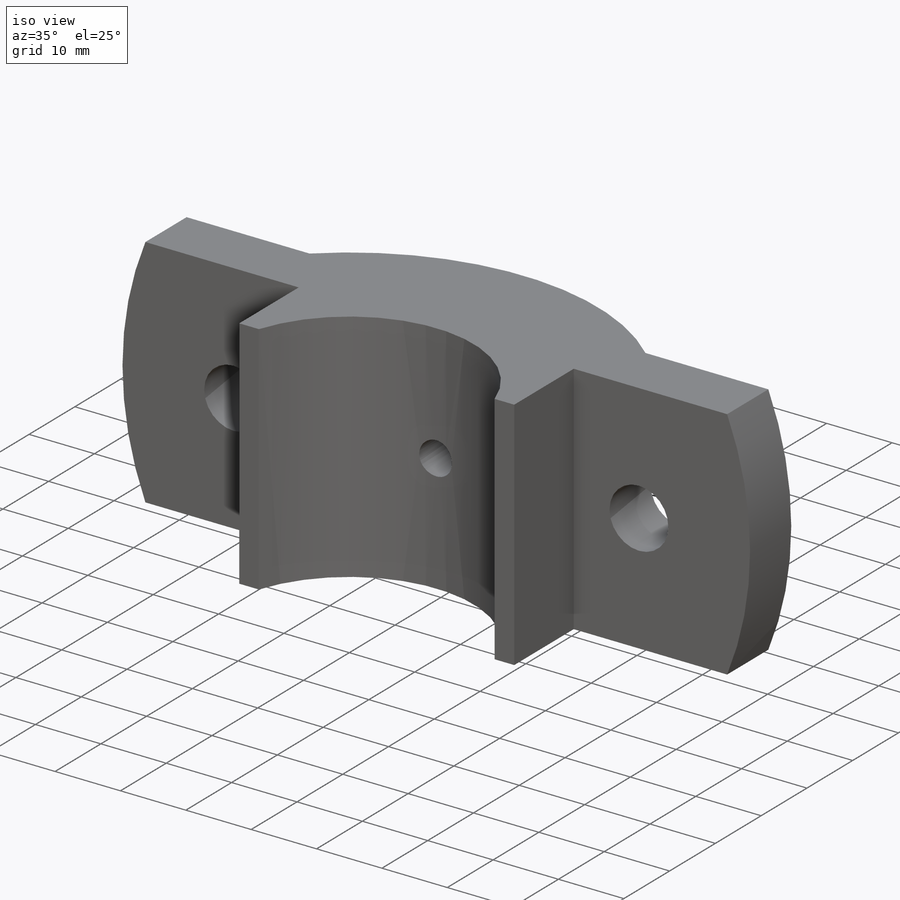
[diagram: iso view]
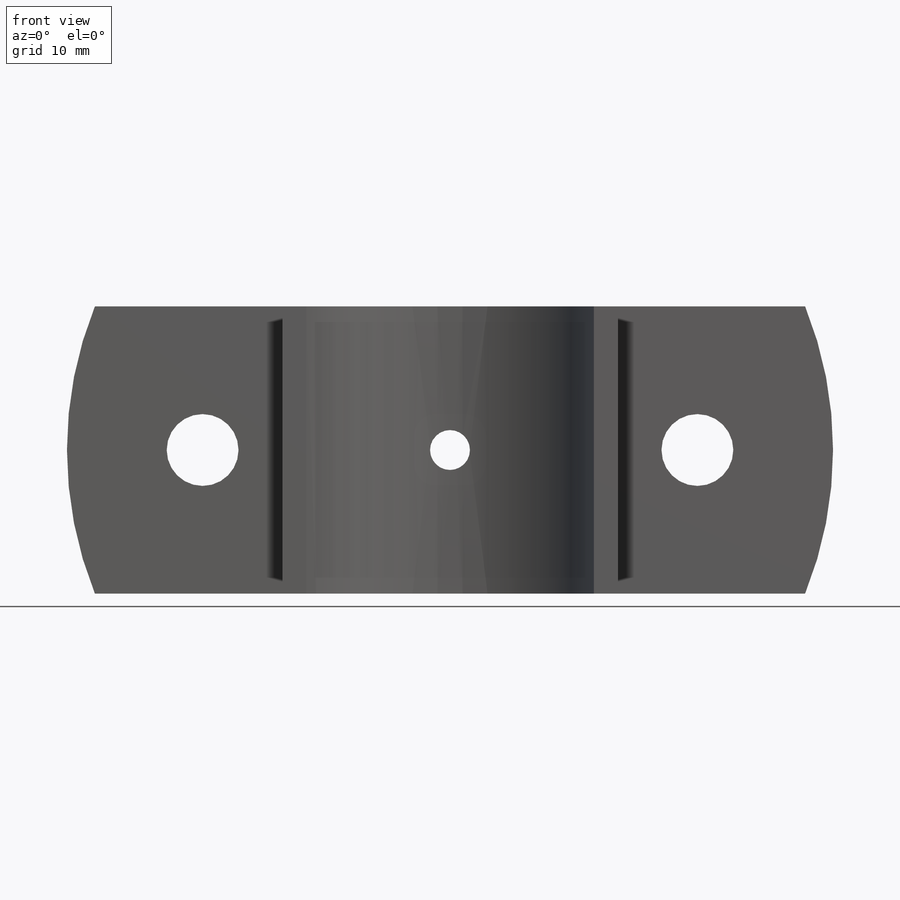
[diagram: front view]
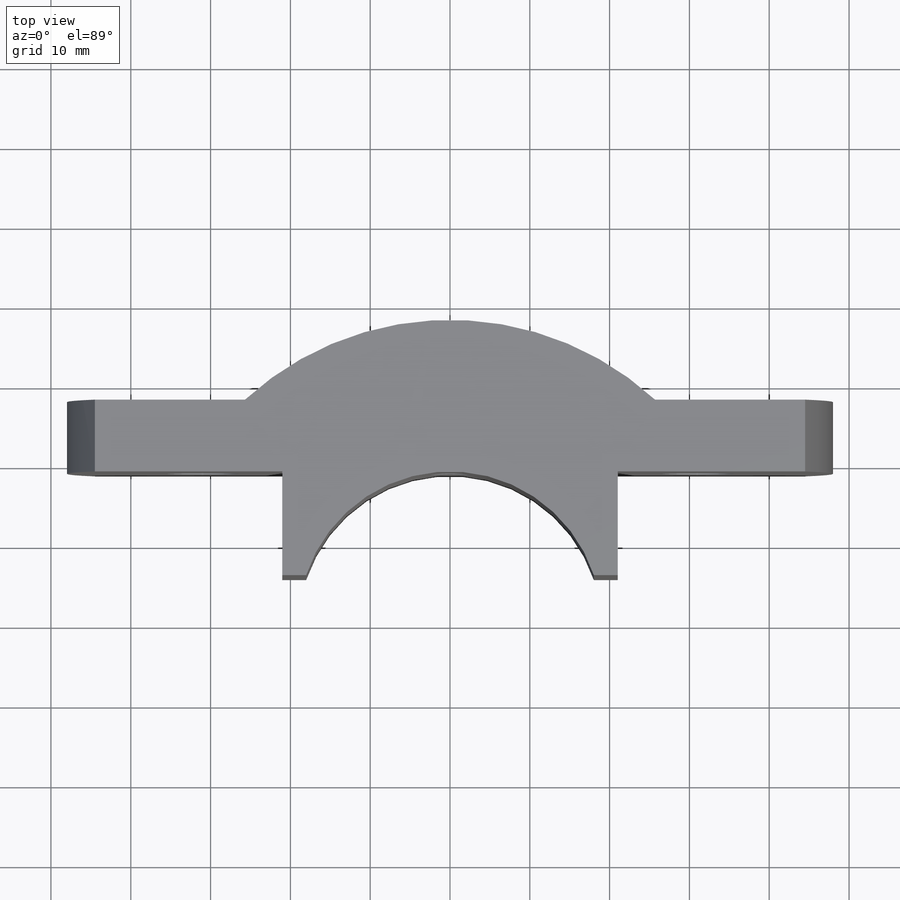
[diagram: top view]
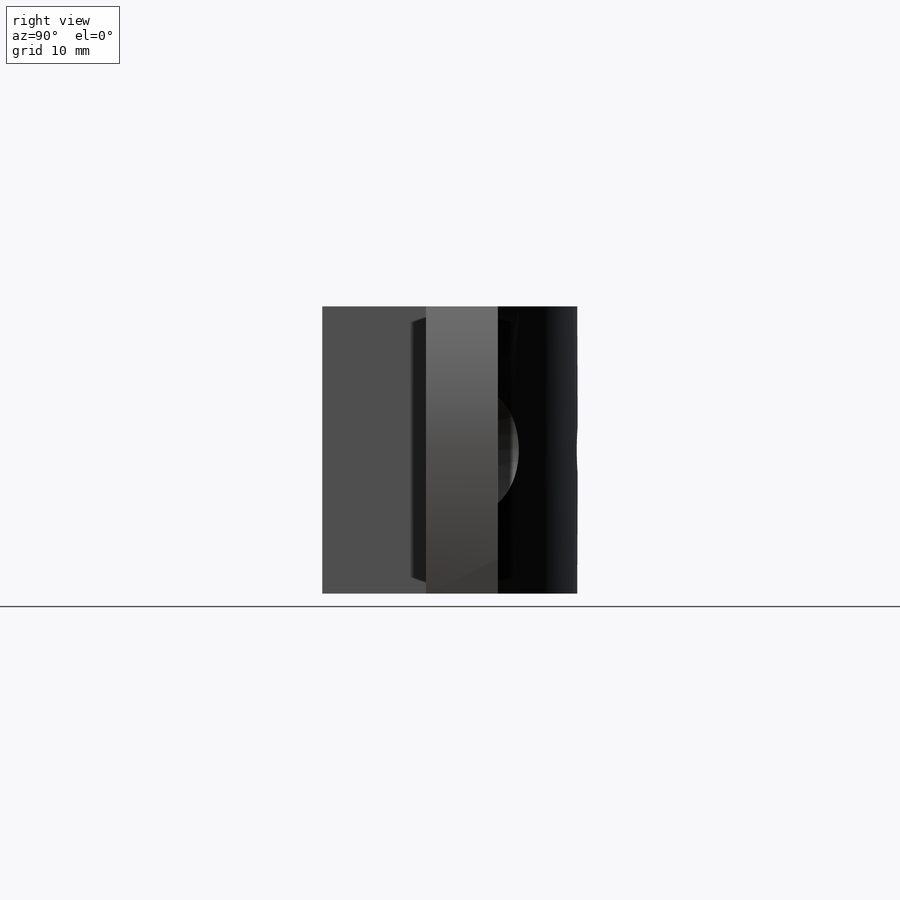
[diagram: right view]
SOLIDWORKS PART (.sldprt)
format: sldprt  version: not decoded by parser v0  size: 242,176 bytes
history: native  units: mm
features: sketch x6, cut_extrude x3, mirror x2, material x1, extrude x1, hole x1 (+12 scaffold rows collapsed)
feature tree (26):
  scaffold x12  (default folders/planes/origin — collapsed)
  material  "Material <not specified>"
  sketch  "Sketch2"  dims[c1.D1=19.0mm c1.D5=38.0mm c1.D2=3.0mm c1.D3=13.0mm c1.D4=6.0mm c2.D5=~75.896042mm c2.D6=9.0mm c2.D7=18.0mm c2.D8=~39.027756mm c3.D7=50.0mm]
  extrude  "Boss-Extrude1"  Depth=36mm
  sketch  "Sketch4"  dims[D2=48.0mm D1=0.0mm]
  cut_extrude  "Cut-Extrude1"  Depth=36mm
  mirror  "Mirror1"
  sketch  "Sketch7"  dims[c1.D1=~4.135568mm c1.D3=9.0mm c2.D1=31.0mm c2.D2=18.0mm]
  cut_extrude  "Cut-Extrude3"  Depth=36mm
  sketch  "Sketch8"  dims[D1=8.5mm]
  cut_extrude  "Cut-Extrude4"  [1 undecoded]
  mirror  "Mirror3"
  hole  "CBORE for M5 Hex Head Bolt1"  Diameter=5mm Depth=32mm
  sketch  "3DSketch2"  dims[D1=0.0mm D2=0.0mm]
  sketch  "Sketch11"  dims[hole-wizard template sketch: 42 standard entries collapsed; hole parameters kept: c12.Thru Hole Depth=32.0mm c12.C'Bore Dia.=6.0mm c12.C'Bore Depth=13.0mm c12.Mid C'Sink Dia.=5.999mm c12.D6=~5.388154mm c12.Mid C'Sink Angle=118.0deg]
decode coverage: 10 of 13 modeling features carry decoded parameters
note: ~ marks probable driven/reference dimensions
note: 1 parameter value undecoded
note: suppression state not decoded; provenance and decode notes live in map.json
